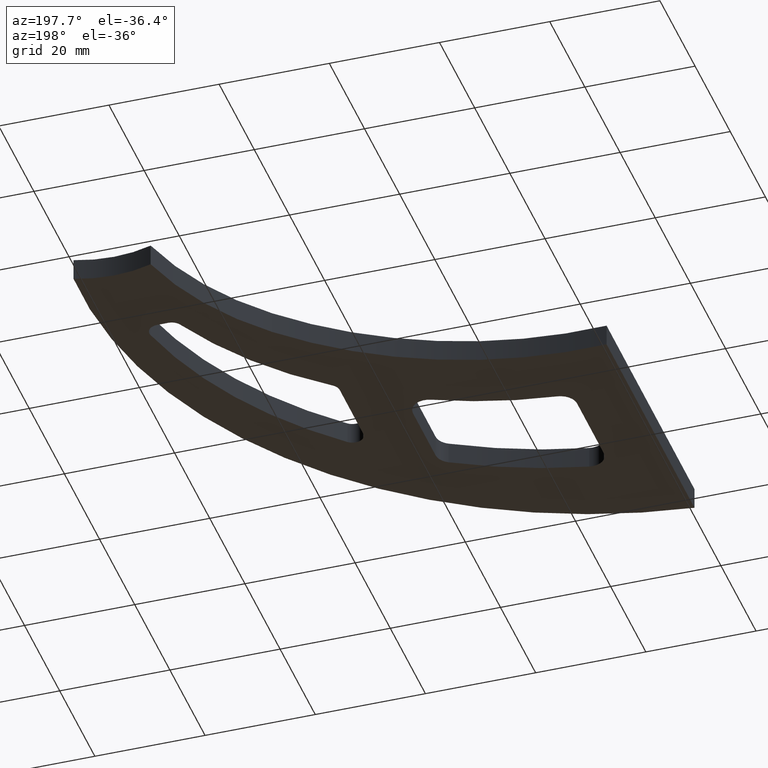
[diagram: clean part render]
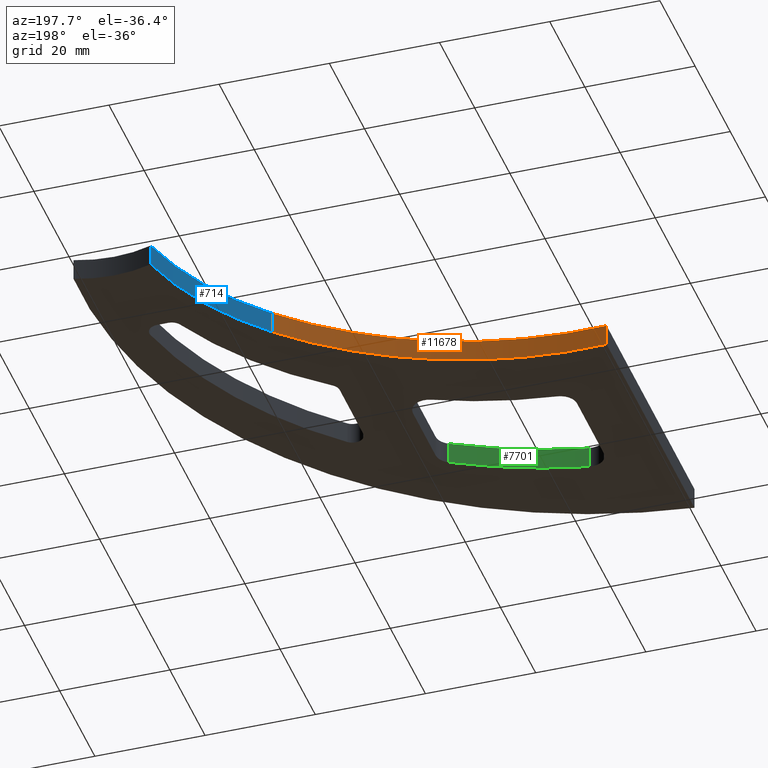
[diagram: same view with three faces highlighted in distinct colors, each labeled with its STEP entity id]
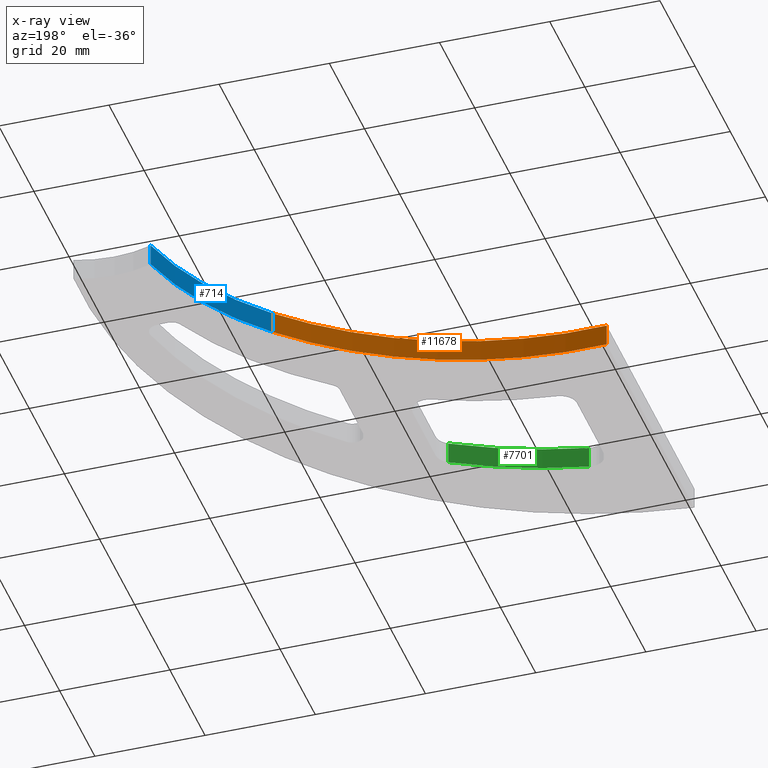
[diagram: x-ray of the same camera — body ghosted, the three highlighted faces saturated]
A machine part, auxiliary view with three faces highlighted in distinct colors.
The next image is the same camera in x-ray (body ghosted, the three faces saturated) — at least one of them is partly hidden behind the body in this view.
Their STEP definitions:

[orange] entity #11678 — the highlighted cylindrical surface (partial cylindrical patch) has radius 70 mm, axis along (-0, -0, -1).
#503 = DIRECTION ( 'NONE',  ( -0.000000000000000000, -0.000000000000000000, -1.000000000000000000 ) ) ;
#1011 = CARTESIAN_POINT ( 'NONE',  ( 53.97457268643530881, 45.99999999999996447, 2.000000000000000000 ) ) ;
#1420 = CARTESIAN_POINT ( 'NONE',  ( 3.879352446742994065, 94.89242179660072907, -2.000000000000000000 ) ) ;
#1782 = VERTEX_POINT ( 'NONE', #11411 ) ;
#1916 = ORIENTED_EDGE ( 'NONE', *, *, #5975, .F. ) ;
#1952 = CARTESIAN_POINT ( 'NONE',  ( 1.998401444325281773E-12, 24.99999999999996803, -2.000000000000000000 ) ) ;
#2533 = LINE ( 'NONE', #7480, #11365 ) ;
#2536 = CARTESIAN_POINT ( 'NONE',  ( 3.879352446742994065, 94.89242179660072907, 2.000000000000000000 ) ) ;
#2771 = VERTEX_POINT ( 'NONE', #1011 ) ;
#3193 = CIRCLE ( 'NONE', #11997, 69.99999999999997158 ) ;
#3350 = VECTOR ( 'NONE', #12135, 1000.000000000000000 ) ;
#3920 = FACE_OUTER_BOUND ( 'NONE', #4479, .T. ) ;
#4012 = ORIENTED_EDGE ( 'NONE', *, *, #5308, .T. ) ;
#4024 = VERTEX_POINT ( 'NONE', #1952 ) ;
#4040 = CARTESIAN_POINT ( 'NONE',  ( 1.998401444325281773E-12, 24.99999999999996803, 2.000000000000000000 ) ) ;
#4479 = EDGE_LOOP ( 'NONE', ( #7150, #1916, #4012, #6316 ) ) ;
#4548 = DIRECTION ( 'NONE',  ( -1.000000000000000000, 0.000000000000000000, 0.000000000000000000 ) ) ;
#4801 = VERTEX_POINT ( 'NONE', #4896 ) ;
#4896 = CARTESIAN_POINT ( 'NONE',  ( 53.97457268643530881, 45.99999999999996447, -2.000000000000000000 ) ) ;
#5151 = CYLINDRICAL_SURFACE ( 'NONE', #8578, 69.99999999999997158 ) ;
#5308 = EDGE_CURVE ( 'NONE', #1782, #2771, #3193, .T. ) ;
#5468 = CIRCLE ( 'NONE', #12430, 69.99999999999997158 ) ;
#5663 = DIRECTION ( 'NONE',  ( 1.000000000000000000, 0.000000000000000000, 0.000000000000000000 ) ) ;
#5975 = EDGE_CURVE ( 'NONE', #1782, #4024, #8062, .T. ) ;
#6316 = ORIENTED_EDGE ( 'NONE', *, *, #7661, .T. ) ;
#7150 = ORIENTED_EDGE ( 'NONE', *, *, #11268, .F. ) ;
#7480 = CARTESIAN_POINT ( 'NONE',  ( 53.97457268643530881, 45.99999999999996447, 2.000000000000000000 ) ) ;
#7628 = DIRECTION ( 'NONE',  ( -0.000000000000000000, -0.000000000000000000, -1.000000000000000000 ) ) ;
#7661 = EDGE_CURVE ( 'NONE', #2771, #4801, #2533, .T. ) ;
#8062 = LINE ( 'NONE', #4040, #3350 ) ;
#8578 = AXIS2_PLACEMENT_3D ( 'NONE', #2536, #7628, #4548 ) ;
#10595 = DIRECTION ( 'NONE',  ( -0.000000000000000000, 0.000000000000000000, 1.000000000000000000 ) ) ;
#10691 = CARTESIAN_POINT ( 'NONE',  ( 3.879352446742994065, 94.89242179660072907, 2.000000000000000000 ) ) ;
#11268 = EDGE_CURVE ( 'NONE', #4024, #4801, #5468, .T. ) ;
#11365 = VECTOR ( 'NONE', #503, 1000.000000000000000 ) ;
#11411 = CARTESIAN_POINT ( 'NONE',  ( 1.998401444325281773E-12, 24.99999999999996803, 2.000000000000000000 ) ) ;
#11678 = ADVANCED_FACE ( 'NONE', ( #3920 ), #5151, .F. ) ;
#11717 = DIRECTION ( 'NONE',  ( -0.000000000000000000, 0.000000000000000000, 1.000000000000000000 ) ) ;
#11997 = AXIS2_PLACEMENT_3D ( 'NONE', #10691, #11717, #5663 ) ;
#12135 = DIRECTION ( 'NONE',  ( -0.000000000000000000, -0.000000000000000000, -1.000000000000000000 ) ) ;
#12430 = AXIS2_PLACEMENT_3D ( 'NONE', #1420, #10595, #12489 ) ;
#12489 = DIRECTION ( 'NONE',  ( 1.000000000000000000, 0.000000000000000000, 0.000000000000000000 ) ) ;

[blue] entity #714 — the highlighted cylindrical surface (partial cylindrical patch) has radius 55 mm, axis along (-0, -0, -1).
#446 = AXIS2_PLACEMENT_3D ( 'NONE', #12601, #513, #5545 ) ;
#503 = DIRECTION ( 'NONE',  ( -0.000000000000000000, -0.000000000000000000, -1.000000000000000000 ) ) ;
#513 = DIRECTION ( 'NONE',  ( -0.000000000000000000, -0.000000000000000000, -1.000000000000000000 ) ) ;
#714 = ADVANCED_FACE ( 'NONE', ( #11434 ), #9036, .F. ) ;
#723 = EDGE_CURVE ( 'NONE', #2153, #1568, #7954, .T. ) ;
#886 = AXIS2_PLACEMENT_3D ( 'NONE', #5250, #6278, #5295 ) ;
#1011 = CARTESIAN_POINT ( 'NONE',  ( 53.97457268643530881, 45.99999999999996447, 2.000000000000000000 ) ) ;
#1129 = ORIENTED_EDGE ( 'NONE', *, *, #4897, .T. ) ;
#1568 = VERTEX_POINT ( 'NONE', #4572 ) ;
#2153 = VERTEX_POINT ( 'NONE', #10172 ) ;
#2183 = CARTESIAN_POINT ( 'NONE',  ( 14.61404249810564338, 84.41547426875771976, 2.000000000000000000 ) ) ;
#2387 = CIRCLE ( 'NONE', #886, 55.00000000000000711 ) ;
#2533 = LINE ( 'NONE', #7480, #11365 ) ;
#2724 = CIRCLE ( 'NONE', #10144, 55.00000000000000711 ) ;
#2771 = VERTEX_POINT ( 'NONE', #1011 ) ;
#3062 = DIRECTION ( 'NONE',  ( 1.000000000000000000, 0.000000000000000000, 0.000000000000000000 ) ) ;
#3813 = EDGE_LOOP ( 'NONE', ( #10230, #9687, #1129, #10660 ) ) ;
#4572 = CARTESIAN_POINT ( 'NONE',  ( 68.00000000000000000, 71.18900302333739205, -2.000000000000000000 ) ) ;
#4629 = CARTESIAN_POINT ( 'NONE',  ( 68.00000000000000000, 71.18900302333739205, 2.000000000000000000 ) ) ;
#4801 = VERTEX_POINT ( 'NONE', #4896 ) ;
#4896 = CARTESIAN_POINT ( 'NONE',  ( 53.97457268643530881, 45.99999999999996447, -2.000000000000000000 ) ) ;
#4897 = EDGE_CURVE ( 'NONE', #2771, #2153, #2724, .T. ) ;
#5250 = CARTESIAN_POINT ( 'NONE',  ( 14.61404249810564338, 84.41547426875771976, -2.000000000000000000 ) ) ;
#5295 = DIRECTION ( 'NONE',  ( 1.000000000000000000, 0.000000000000000000, 0.000000000000000000 ) ) ;
#5545 = DIRECTION ( 'NONE',  ( -1.000000000000000000, 0.000000000000000000, 0.000000000000000000 ) ) ;
#6278 = DIRECTION ( 'NONE',  ( -0.000000000000000000, 0.000000000000000000, 1.000000000000000000 ) ) ;
#6875 = EDGE_CURVE ( 'NONE', #4801, #1568, #2387, .T. ) ;
#7309 = VECTOR ( 'NONE', #7674, 1000.000000000000000 ) ;
#7480 = CARTESIAN_POINT ( 'NONE',  ( 53.97457268643530881, 45.99999999999996447, 2.000000000000000000 ) ) ;
#7661 = EDGE_CURVE ( 'NONE', #2771, #4801, #2533, .T. ) ;
#7674 = DIRECTION ( 'NONE',  ( -0.000000000000000000, -0.000000000000000000, -1.000000000000000000 ) ) ;
#7954 = LINE ( 'NONE', #4629, #7309 ) ;
#9036 = CYLINDRICAL_SURFACE ( 'NONE', #446, 55.00000000000000711 ) ;
#9687 = ORIENTED_EDGE ( 'NONE', *, *, #7661, .F. ) ;
#10144 = AXIS2_PLACEMENT_3D ( 'NONE', #2183, #12084, #3062 ) ;
#10172 = CARTESIAN_POINT ( 'NONE',  ( 68.00000000000000000, 71.18900302333739205, 2.000000000000000000 ) ) ;
#10230 = ORIENTED_EDGE ( 'NONE', *, *, #6875, .F. ) ;
#10660 = ORIENTED_EDGE ( 'NONE', *, *, #723, .T. ) ;
#11365 = VECTOR ( 'NONE', #503, 1000.000000000000000 ) ;
#11434 = FACE_OUTER_BOUND ( 'NONE', #3813, .T. ) ;
#12084 = DIRECTION ( 'NONE',  ( -0.000000000000000000, 0.000000000000000000, 1.000000000000000000 ) ) ;
#12601 = CARTESIAN_POINT ( 'NONE',  ( 14.61404249810564338, 84.41547426875771976, 2.000000000000000000 ) ) ;

[green] entity #7701 — the highlighted cylindrical surface (partial cylindrical patch) has radius 78.5 mm, axis along (-0, -0, -1).
#594 = DIRECTION ( 'NONE',  ( -0.000000000000000000, 0.000000000000000000, 1.000000000000000000 ) ) ;
#809 = DIRECTION ( 'NONE',  ( 1.000000000000000000, 0.000000000000000000, 0.000000000000000000 ) ) ;
#1071 = AXIS2_PLACEMENT_3D ( 'NONE', #11596, #594, #5446 ) ;
#1479 = CARTESIAN_POINT ( 'NONE',  ( -2.274320155918185815, 68.81855391245915143, 2.000000000000000000 ) ) ;
#2709 = ORIENTED_EDGE ( 'NONE', *, *, #7758, .T. ) ;
#2962 = EDGE_CURVE ( 'NONE', #10779, #6005, #6339, .T. ) ;
#3507 = VECTOR ( 'NONE', #10585, 1000.000000000000000 ) ;
#3511 = CARTESIAN_POINT ( 'NONE',  ( 13.71090013864575852, -8.036652366193553831, -2.000000000000000000 ) ) ;
#4648 = VERTEX_POINT ( 'NONE', #3511 ) ;
#4678 = CIRCLE ( 'NONE', #8917, 78.49999999999998579 ) ;
#4709 = VECTOR ( 'NONE', #12928, 1000.000000000000000 ) ;
#5337 = LINE ( 'NONE', #9115, #4709 ) ;
#5446 = DIRECTION ( 'NONE',  ( 1.000000000000000000, 0.000000000000000000, 0.000000000000000000 ) ) ;
#5503 = CIRCLE ( 'NONE', #1071, 78.50000000000000000 ) ;
#5578 = AXIS2_PLACEMENT_3D ( 'NONE', #1479, #8693, #10614 ) ;
#5828 = CYLINDRICAL_SURFACE ( 'NONE', #5578, 78.49999999999998579 ) ;
#6005 = VERTEX_POINT ( 'NONE', #9267 ) ;
#6339 = LINE ( 'NONE', #6579, #3507 ) ;
#6579 = CARTESIAN_POINT ( 'NONE',  ( 36.48109881414266908, 0.5524019742178531978, 2.000000000000000000 ) ) ;
#6855 = ORIENTED_EDGE ( 'NONE', *, *, #7984, .T. ) ;
#7693 = CARTESIAN_POINT ( 'NONE',  ( 36.48109881414266908, 0.5524019742178531978, 2.000000000000000000 ) ) ;
#7701 = ADVANCED_FACE ( 'NONE', ( #9756 ), #5828, .F. ) ;
#7755 = CARTESIAN_POINT ( 'NONE',  ( -2.274320155918185815, 68.81855391245915143, -2.000000000000000000 ) ) ;
#7758 = EDGE_CURVE ( 'NONE', #8161, #10779, #5503, .T. ) ;
#7984 = EDGE_CURVE ( 'NONE', #4648, #8161, #5337, .T. ) ;
#8161 = VERTEX_POINT ( 'NONE', #8546 ) ;
#8173 = ORIENTED_EDGE ( 'NONE', *, *, #12141, .F. ) ;
#8469 = ORIENTED_EDGE ( 'NONE', *, *, #2962, .T. ) ;
#8546 = CARTESIAN_POINT ( 'NONE',  ( 13.71090013864576207, -8.036652366193566266, 2.000000000000000000 ) ) ;
#8693 = DIRECTION ( 'NONE',  ( -0.000000000000000000, -0.000000000000000000, -1.000000000000000000 ) ) ;
#8899 = DIRECTION ( 'NONE',  ( -0.000000000000000000, 0.000000000000000000, 1.000000000000000000 ) ) ;
#8917 = AXIS2_PLACEMENT_3D ( 'NONE', #7755, #8899, #809 ) ;
#9115 = CARTESIAN_POINT ( 'NONE',  ( 13.71090013864575852, -8.036652366193553831, 2.000000000000000000 ) ) ;
#9267 = CARTESIAN_POINT ( 'NONE',  ( 36.48109881414266908, 0.5524019742178531978, -2.000000000000000000 ) ) ;
#9756 = FACE_OUTER_BOUND ( 'NONE', #10649, .T. ) ;
#10585 = DIRECTION ( 'NONE',  ( -0.000000000000000000, -0.000000000000000000, -1.000000000000000000 ) ) ;
#10614 = DIRECTION ( 'NONE',  ( -1.000000000000000000, 0.000000000000000000, 0.000000000000000000 ) ) ;
#10649 = EDGE_LOOP ( 'NONE', ( #2709, #8469, #8173, #6855 ) ) ;
#10779 = VERTEX_POINT ( 'NONE', #7693 ) ;
#11596 = CARTESIAN_POINT ( 'NONE',  ( -2.274320155918185815, 68.81855391245915143, 2.000000000000000000 ) ) ;
#12141 = EDGE_CURVE ( 'NONE', #4648, #6005, #4678, .T. ) ;
#12928 = DIRECTION ( 'NONE',  ( 0.000000000000000000, 0.000000000000000000, 1.000000000000000000 ) ) ;